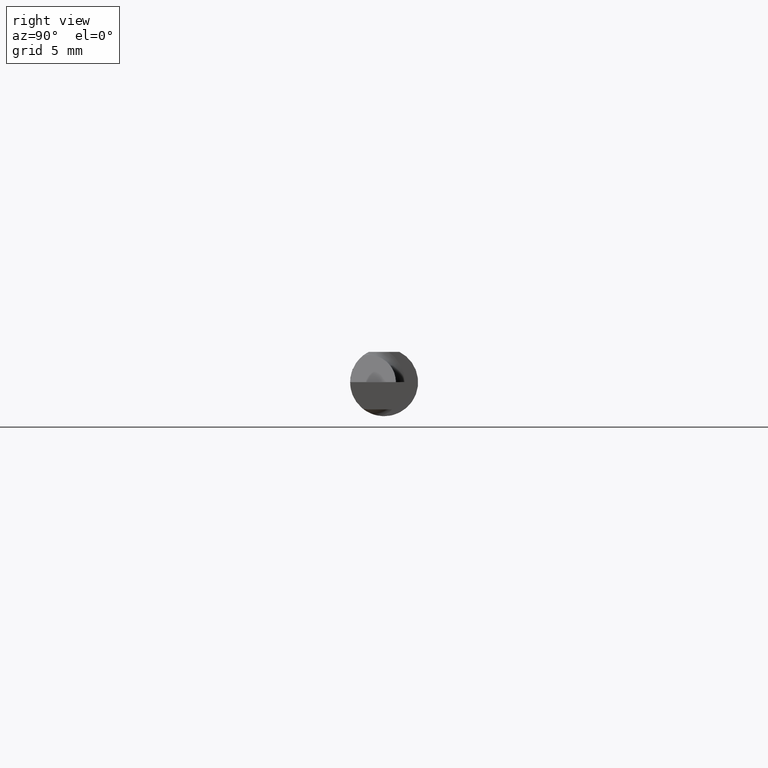
[diagram: clean part render]
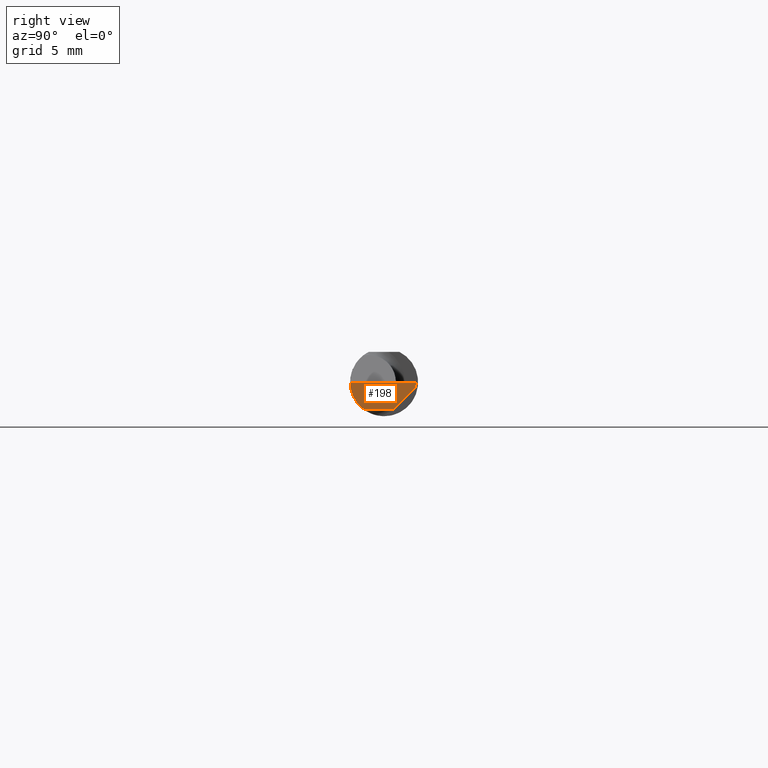
[diagram: same view with one face highlighted and labeled with its STEP entity id]
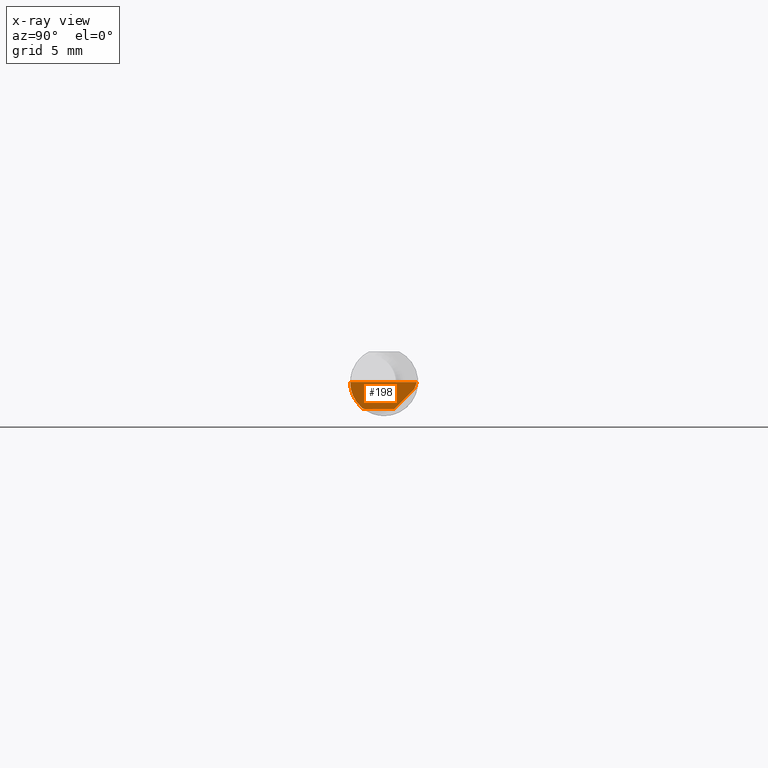
[diagram: x-ray of the same camera — body ghosted, the highlighted face saturated]
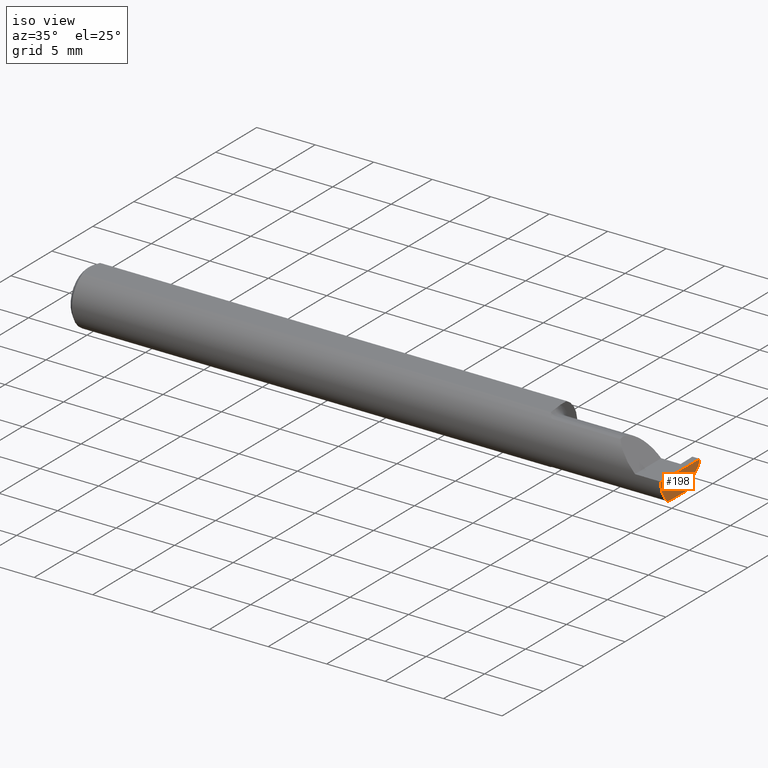
[diagram: same view with one face highlighted and labeled with its STEP entity id]
A machine part, right view. The second image highlights one B-rep face of the part: STEP entity #198.
The next image is the same camera in x-ray: the body ghosted, the highlighted face saturated — about 0% of this face is hidden behind the body in this view.
A second angle (iso view) of the same face is appended — the face is thin or edge-on in the first view.
In plain terms, the highlighted planar face has unit normal (-0.9995, 0.0174, 0.0262).
Its self-contained STEP definition (entity closure, byte-faithful):
#24 = DIRECTION ( 'NONE',  ( -0.03056411404777942264, -0.3418603543644915255, -0.9392536042231929283 ) ) ;
#25 = ORIENTED_EDGE ( 'NONE', *, *, #728, .F. ) ;
#33 = VERTEX_POINT ( 'NONE', #618 ) ;
#39 = CARTESIAN_POINT ( 'NONE',  ( 1.995486889784650497, -0.05810704225352112534, -0.07337936794867826185 ) ) ;
#43 = VERTEX_POINT ( 'NONE', #320 ) ;
#56 = DIRECTION ( 'NONE',  ( -0.01744642479411312799, -0.9998477995484629233, 3.463134274570152404E-16 ) ) ;
#80 = ORIENTED_EDGE ( 'NONE', *, *, #714, .F. ) ;
#106 = ORIENTED_EDGE ( 'NONE', *, *, #387, .F. ) ;
#155 = LINE ( 'NONE', #449, #487 ) ;
#163 = AXIS2_PLACEMENT_3D ( 'NONE', #567, #457, #325 ) ;
#198 = ADVANCED_FACE ( 'NONE', ( #220 ), #442, .F. ) ;
#199 = ORIENTED_EDGE ( 'NONE', *, *, #353, .T. ) ;
#220 = FACE_OUTER_BOUND ( 'NONE', #777, .T. ) ;
#228 = CARTESIAN_POINT ( 'NONE',  ( 1.995547692684114249, -0.05300374992736063551, -0.07445783144524571739 ) ) ;
#232 = ORIENTED_EDGE ( 'NONE', *, *, #667, .F. ) ;
#241 = VECTOR ( 'NONE', #403, 39.37007874015748854 ) ;
#262 = VERTEX_POINT ( 'NONE', #696 ) ;
#270 = EDGE_CURVE ( 'NONE', #262, #681, #638, .T. ) ;
#284 =( BOUNDED_CURVE ( )  B_SPLINE_CURVE ( 3, ( #522, #772, #460, #407 ),
 .UNSPECIFIED., .F., .F. ) 
 B_SPLINE_CURVE_WITH_KNOTS ( ( 4, 4 ),
 ( 0.08204942185700578317, 0.9826237902196912621 ),
 .UNSPECIFIED. ) 
 CURVE ( )  GEOMETRIC_REPRESENTATION_ITEM ( )  RATIONAL_B_SPLINE_CURVE ( ( 1.000000000000000000, 0.9335481000009943076, 0.9335481000009943076, 1.000000000000000000 ) ) 
 REPRESENTATION_ITEM ( '' )  );
#306 = EDGE_CURVE ( 'NONE', #626, #431, #523, .T. ) ;
#320 = CARTESIAN_POINT ( 'NONE',  ( 1.995486889784650497, -0.05810704225352112534, -0.07337936794867826185 ) ) ;
#325 = DIRECTION ( 'NONE',  ( 0.02618093032612054533, 0.000000000000000000, 0.9996572206948034500 ) ) ;
#346 = VERTEX_POINT ( 'NONE', #536 ) ;
#353 = EDGE_CURVE ( 'NONE', #43, #431, #484, .T. ) ;
#357 = CARTESIAN_POINT ( 'NONE',  ( 1.997436282896842386, 0.05604437736224970185, -0.07500000000000002498 ) ) ;
#365 = VECTOR ( 'NONE', #24, 39.37007874015748854 ) ;
#385 = CARTESIAN_POINT ( 'NONE',  ( 1.999906583493247902, 0.08935513411407894346, -0.002870745427926570548 ) ) ;
#387 = EDGE_CURVE ( 'NONE', #346, #262, #582, .T. ) ;
#400 = DIRECTION ( 'NONE',  ( 0.01744642479411313840, 0.9998477995484629233, -2.135106780035502721E-18 ) ) ;
#403 = DIRECTION ( 'NONE',  ( -0.03084274406794414863, -0.7067703747110382073, -0.7067703747110356538 ) ) ;
#407 = CARTESIAN_POINT ( 'NONE',  ( 1.996788249052547481, -0.09359999022555406945, -4.277588313357508156E-05 ) ) ;
#431 = VERTEX_POINT ( 'NONE', #649 ) ;
#442 = PLANE ( 'NONE',  #163 ) ;
#449 = CARTESIAN_POINT ( 'NONE',  ( 1.994172072281005459, -0.09355431490906530867, -0.09996576130738767108 ) ) ;
#457 = DIRECTION ( 'NONE',  ( -0.9995051766793262571, 0.01744044634007060196, 0.02617694830739122208 ) ) ;
#460 = CARTESIAN_POINT ( 'NONE',  ( 1.996026586675631709, -0.09358669535931163352, -0.02913391928411206838 ) ) ;
#466 = CARTESIAN_POINT ( 'NONE',  ( 1.996678706298551820, -0.09994204647866641866, 4.067411700506801675E-19 ) ) ;
#484 =( BOUNDED_CURVE ( )  B_SPLINE_CURVE ( 3, ( #39, #228, #720, #773 ),
 .UNSPECIFIED., .F., .T. ) 
 B_SPLINE_CURVE_WITH_KNOTS ( ( 4, 4 ),
 ( 0.3794527164476041992, 0.5877155292608622350 ),
 .UNSPECIFIED. ) 
 CURVE ( )  GEOMETRIC_REPRESENTATION_ITEM ( )  RATIONAL_B_SPLINE_CURVE ( ( 1.000000000000000000, 0.9963888149483995926, 0.9963888149483995926, 1.000000000000000000 ) ) 
 REPRESENTATION_ITEM ( '' )  );
#487 = VECTOR ( 'NONE', #694, 39.37007874015748854 ) ;
#522 = CARTESIAN_POINT ( 'NONE',  ( 1.995486889784650497, -0.05810704225352112534, -0.07337936794867826185 ) ) ;
#523 = LINE ( 'NONE', #357, #697 ) ;
#536 = CARTESIAN_POINT ( 'NONE',  ( 1.996789369178486595, -0.09359999999634724399, 1.727064904157919157E-17 ) ) ;
#559 = ORIENTED_EDGE ( 'NONE', *, *, #270, .F. ) ;
#567 = CARTESIAN_POINT ( 'NONE',  ( 1.997382703856816377, 0.09044568507411565594, -0.09996573249755573431 ) ) ;
#572 = ORIENTED_EDGE ( 'NONE', *, *, #306, .F. ) ;
#582 = LINE ( 'NONE', #466, #708 ) ;
#592 = CARTESIAN_POINT ( 'NONE',  ( 1.999287184445666998, 0.08131816941191072345, -0.02116639613703141104 ) ) ;
#618 = CARTESIAN_POINT ( 'NONE',  ( 1.996788249052547481, -0.09359999022555406945, -4.277588313357508156E-05 ) ) ;
#626 = VERTEX_POINT ( 'NONE', #682 ) ;
#638 = LINE ( 'NONE', #385, #365 ) ;
#649 = CARTESIAN_POINT ( 'NONE',  ( 1.995715029210241465, -0.04259999999999997816, -0.07499999999999998335 ) ) ;
#667 = EDGE_CURVE ( 'NONE', #33, #346, #155, .T. ) ;
#681 = VERTEX_POINT ( 'NONE', #758 ) ;
#682 = CARTESIAN_POINT ( 'NONE',  ( 1.996937940439960757, 0.02748456554894194992, -0.07499999999999998335 ) ) ;
#694 = DIRECTION ( 'NONE',  ( 0.02617296143184116158, -0.0004568507411563392279, 0.9996573249755575929 ) ) ;
#696 = CARTESIAN_POINT ( 'NONE',  ( 2.000000000000000444, 0.09040000000000000813, -4.722041942173579765E-17 ) ) ;
#697 = VECTOR ( 'NONE', #56, 39.37007874015748854 ) ;
#708 = VECTOR ( 'NONE', #400, 39.37007874015748854 ) ;
#714 = EDGE_CURVE ( 'NONE', #43, #33, #284, .T. ) ;
#720 = CARTESIAN_POINT ( 'NONE',  ( 1.995624014772495736, -0.04781600192481529760, -0.07499999999999999722 ) ) ;
#728 = EDGE_CURVE ( 'NONE', #681, #626, #767, .T. ) ;
#758 = CARTESIAN_POINT ( 'NONE',  ( 1.999381723781206599, 0.08348456554894213844, -0.01900000000000000300 ) ) ;
#767 = LINE ( 'NONE', #592, #241 ) ;
#772 = CARTESIAN_POINT ( 'NONE',  ( 1.995561922431088098, -0.08091355869144019330, -0.05531953381055033925 ) ) ;
#773 = CARTESIAN_POINT ( 'NONE',  ( 1.995715029210241465, -0.04259999999999997816, -0.07499999999999998335 ) ) ;
#777 = EDGE_LOOP ( 'NONE', ( #199, #572, #25, #559, #106, #232, #80 ) ) ;